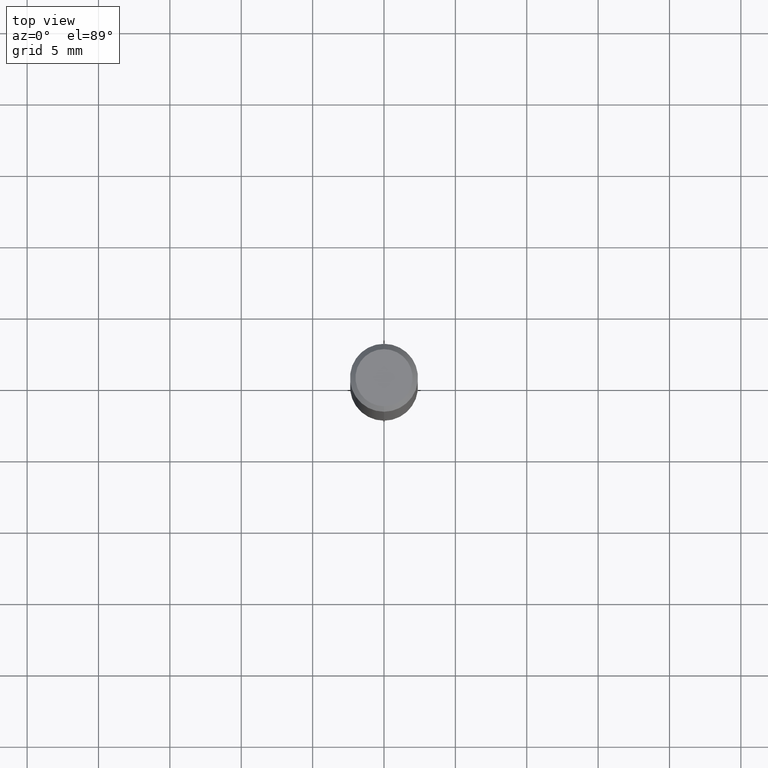
[diagram: clean part render]
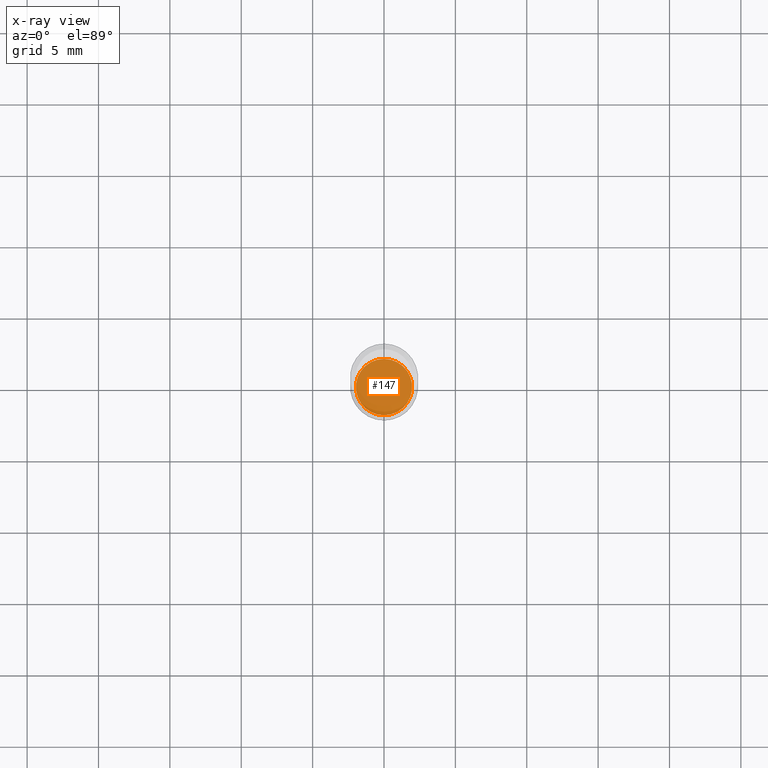
[diagram: x-ray — body ghosted, one internal face saturated and labeled with its STEP entity id]
A machine part, top view, then the same camera in x-ray: the body is ghosted and one INTERNAL B-rep face — a face not visible from any outside direction — is saturated and labeled: STEP entity #147.
In plain terms, the highlighted planar face has unit normal (-0, 0, 1).
Its self-contained STEP definition (entity closure, byte-faithful):
#22 = AXIS2_PLACEMENT_3D ( 'NONE', #185, #379, #148 ) ;
#25 = ORIENTED_EDGE ( 'NONE', *, *, #204, .F. ) ;
#43 = EDGE_CURVE ( 'NONE', #192, #343, #336, .T. ) ;
#103 = CARTESIAN_POINT ( 'NONE',  ( 3.668656605816387769E-29, -5.236572718615595766E-15, -1.499999999999999778 ) ) ;
#105 = DIRECTION ( 'NONE',  ( -2.445771070544258513E-29, 3.491048479077063581E-15, 1.000000000000000000 ) ) ;
#108 = FACE_OUTER_BOUND ( 'NONE', #415, .T. ) ;
#147 = ADVANCED_FACE ( 'NONE', ( #108 ), #256, .F. ) ;
#148 = DIRECTION ( 'NONE',  ( -6.982962677686265922E-15, -1.000000000000000000, 3.520422672247761757E-15 ) ) ;
#167 = AXIS2_PLACEMENT_3D ( 'NONE', #103, #105, #298 ) ;
#173 = CARTESIAN_POINT ( 'NONE',  ( 3.668656605816388329E-29, -5.236572718615595766E-15, -1.500000000000000222 ) ) ;
#185 = CARTESIAN_POINT ( 'NONE',  ( 3.668656605816388329E-29, -5.236572718615595766E-15, -1.500000000000000222 ) ) ;
#186 = CARTESIAN_POINT ( 'NONE',  ( 5.531575197892741031E-16, 0.07759999999999475651, -1.500000000000000444 ) ) ;
#192 = VERTEX_POINT ( 'NONE', #186 ) ;
#204 = EDGE_CURVE ( 'NONE', #343, #192, #208, .T. ) ;
#208 = CIRCLE ( 'NONE', #22, 0.07760000000000000231 ) ;
#256 = PLANE ( 'NONE',  #167 ) ;
#298 = DIRECTION ( 'NONE',  ( -6.982962677686265922E-15, -1.000000000000000000, 3.491048479077063581E-15 ) ) ;
#315 = ORIENTED_EDGE ( 'NONE', *, *, #43, .F. ) ;
#336 = CIRCLE ( 'NONE', #360, 0.07760000000000000231 ) ;
#343 = VERTEX_POINT ( 'NONE', #478 ) ;
#360 = AXIS2_PLACEMENT_3D ( 'NONE', #173, #410, #494 ) ;
#379 = DIRECTION ( 'NONE',  ( -2.445771070544258513E-29, 3.491048479077063976E-15, 1.000000000000000000 ) ) ;
#410 = DIRECTION ( 'NONE',  ( -2.445771070544258513E-29, 3.491048479077063976E-15, 1.000000000000000000 ) ) ;
#415 = EDGE_LOOP ( 'NONE', ( #25, #315 ) ) ;
#478 = CARTESIAN_POINT ( 'NONE',  ( -5.418779037884175500E-16, -0.07760000000000523424, -1.499999999999999778 ) ) ;
#494 = DIRECTION ( 'NONE',  ( -6.982962677686265922E-15, -1.000000000000000000, 3.520422672247761757E-15 ) ) ;